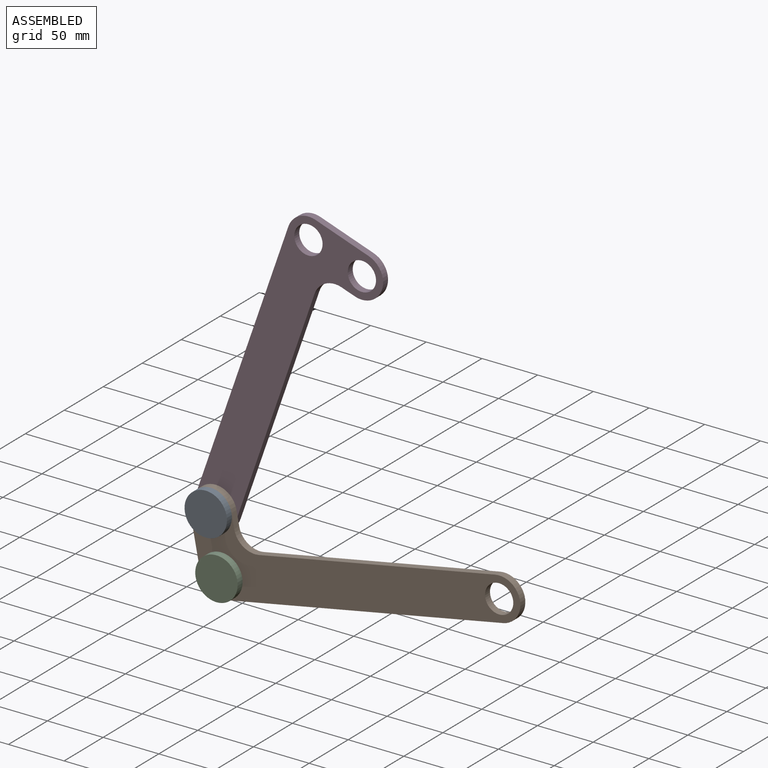
[diagram: assembled view]
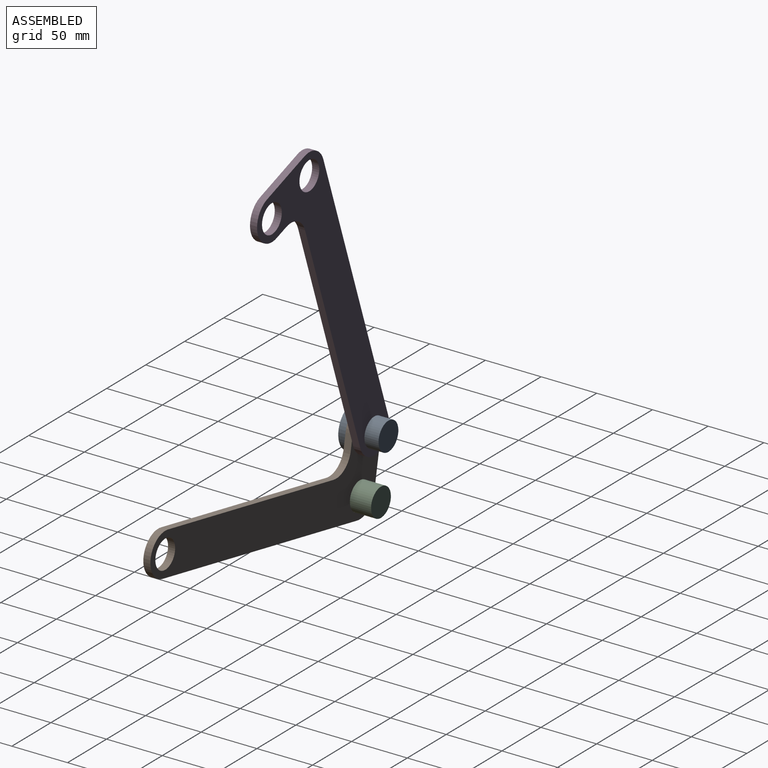
[diagram: assembled view, second angle]
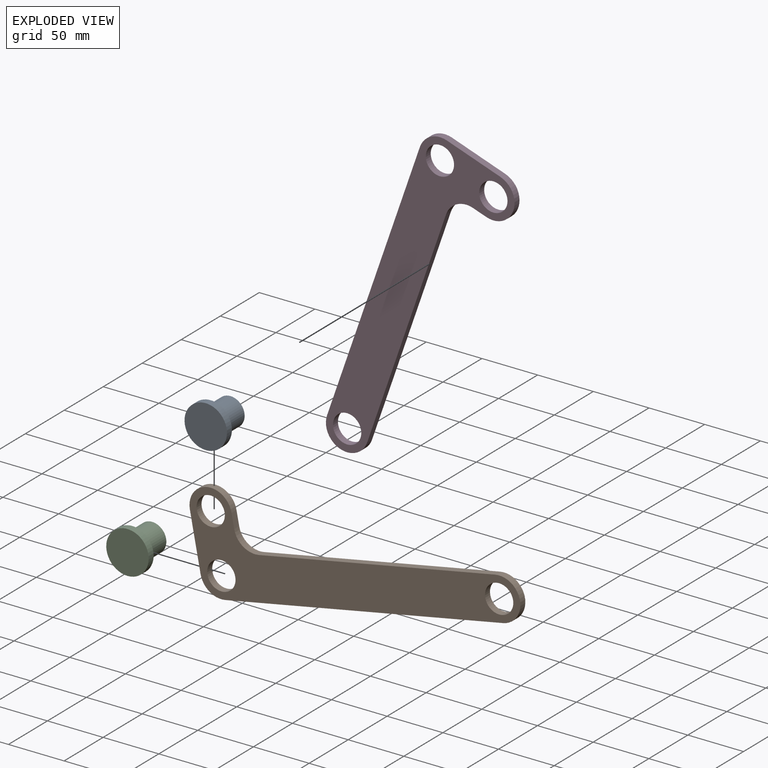
[diagram: exploded view]
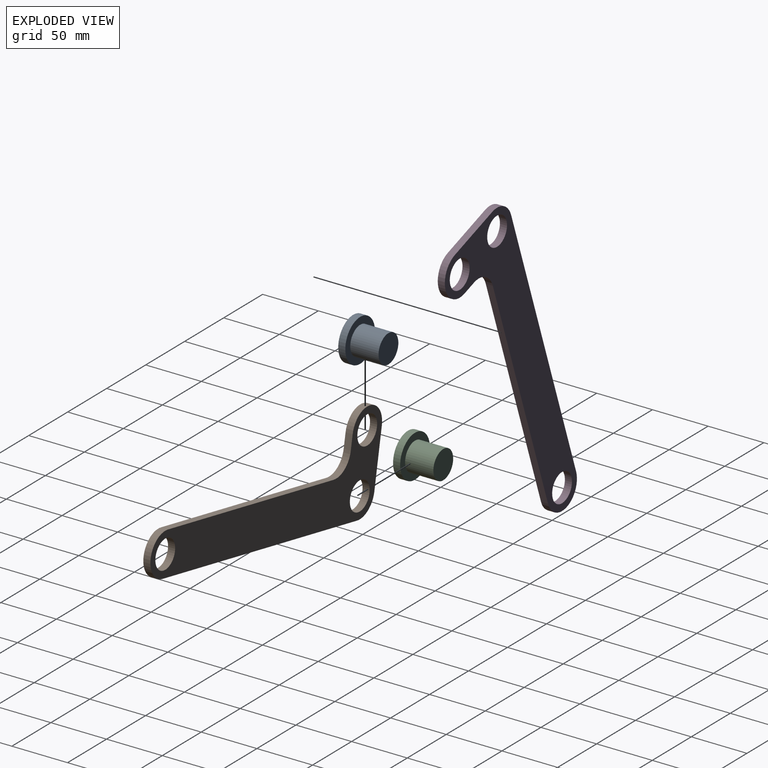
[diagram: exploded view, second angle]
ASSEMBLY  parts=4 mates=6
PART A: 5 faces, bbox 38.1x31.8x38.1 mm
  f0: cylinder r=19.05mm len=38.1mm, axis (0,1,0), area 760.1mm2, adj f1,f2
  f1: plane 38.1x38.1mm, normal (0,-1,0), area 1140.1mm2, adj f0
  f2: plane 38.1x38.1mm, normal (0,1,0), area 633.4mm2, adj f0,f3
  f3: cylinder r=12.7mm len=25.4mm, axis (0,-1,0), area 2026.8mm2, adj f2,f4
  f4: plane 25.4x25.4mm, normal (0,1,0), area 506.7mm2, adj f3
PART B: 13 faces, bbox 88.9x6.4x292.1 mm
  f0: plane 50.8x6.35mm, normal (0,0,-1), area 322.6mm2, adj f1,f10,f11,f12
  f1: cylinder r=19.05mm len=19.05mm, axis (0,1,0), area 190mm2, adj f0,f2,f11,f12
  f2: plane 254x6.35mm, normal (1,0,0), area 1612.9mm2, adj f1,f3,f11,f12
  f3: cylinder r=19.05mm len=38.1mm, axis (0,1,0), area 380mm2, adj f2,f4,f11,f12
  f4: plane 215.9x6.35mm, normal (-1,0,0), area 1371mm2, adj f3,f5,f11,f12
  f5: cylinder r=19.05mm len=19.05mm, axis (0,1,0), area 190mm2, adj f4,f6,f11,f12
  f6: plane 12.7x6.35mm, normal (0,0,1), area 80.6mm2, adj f5,f10,f11,f12
  f7: cylinder r=12.7mm len=25.4mm, axis (0,1,0), area 506.7mm2, adj f11,f12
  f8: cylinder r=12.7mm len=25.4mm, axis (0,1,0), area 506.7mm2, adj f11,f12
  f9: cylinder r=12.7mm len=25.4mm, axis (0,1,0), area 506.7mm2, adj f11,f12
  f10: cylinder r=19.05mm len=38.1mm, axis (0,1,0), area 380mm2, adj f0,f6,f11,f12
  f11: plane 292.1x88.9mm, normal (0,-1,0), area 11232.8mm2, adj f0,f1,f2,f3,f4,f5,f6,f7
  f12: plane 292.1x88.9mm, normal (0,1,0), area 11232.8mm2, adj f0,f1,f2,f3,f4,f5,f6,f7
PART C: same geometry as A
PART D: same geometry as B
PLACE A rot(axis=(0,1,0),0deg) t=(-67.99,-64.91,-28.2)mm
PLACE B rot(axis=(0,1,0),79.1deg) t=(-58.39,-58.56,-78.08)mm
PLACE C t=(-58.39,-64.91,-78.08)mm fixed
PLACE D rot(axis=(0,-1,0),160.9deg) t=(15.33,-52.21,211.75)mm
MATE planar B.f12 <-> D.f11  axis (0,1,0) through (49.63,-58.56,-52.49)mm
MATE cylindrical A.f3 <-> D.f3  axis (0,-1,0) through (-67.99,-52.21,-28.2)mm
MATE planar B.f11 <-> C.f0  axis (0,-1,0) through (-24.58,-64.91,-52.18)mm
MATE planar A.f0 <-> B.f11  axis (0,1,0) through (-67.99,-64.91,-28.2)mm
MATE cylindrical B.f7 <-> C.f3  axis (0,-1,0) through (-58.39,-64.91,-78.08)mm
MATE cylindrical B.f10 <-> A.f0  axis (0,-1,0) through (-67.99,-64.91,-28.2)mm
